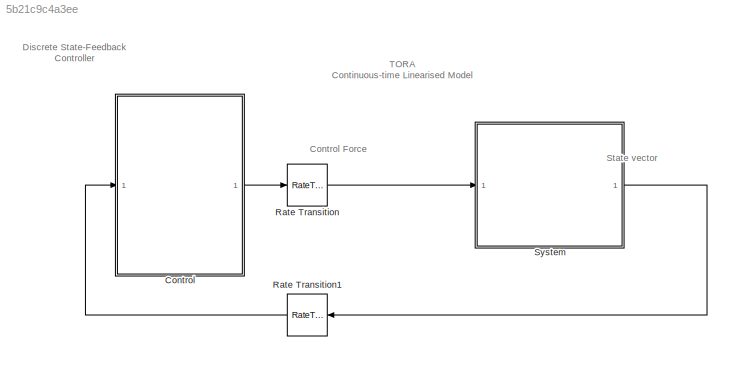
MODEL slx_5b21c9c4a3ee
KIND model
CONFIG AbsTol = 1e-6
CONFIG EnableMultiTasking = on
CONFIG FixedStep = h
CONFIG MaxStep = auto
CONFIG MinStep = auto
CONFIG RelTol = 1e-6
CONFIG SampleTimeConstraint = Unconstrained
CONFIG Solver = ode4
CONFIG SolverName = ode4
CONFIG StartTime = 0.0
CONFIG StopTime = stoptime
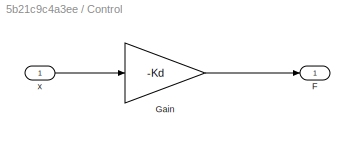
BLOCK [SubSystem] Control
  Ports = [1, 1]
  RequestExecContextInheritance = off
BLOCK [Outport] Control/F
  IconDisplay = Port number
  VectorParamsAs1DForOutWhenUnconnected = off
BLOCK [Gain] Control/Gain
  Gain = -Kd
  Multiplication = Matrix(K*u)
  OutDataTypeStr = Inherit: Inherit via internal rule
  ParamDataTypeStr = Inherit: Inherit via internal rule
  SaturateOnIntegerOverflow = off
BLOCK [Inport] Control/x
  IconDisplay = Port number
BLOCK [RateTransition] Rate Transition
  InitialCondition = -Kd*x0_tilde
BLOCK [RateTransition] Rate Transition1
  InitialCondition = x0_tilde
  OutPortSampleTime = Ts
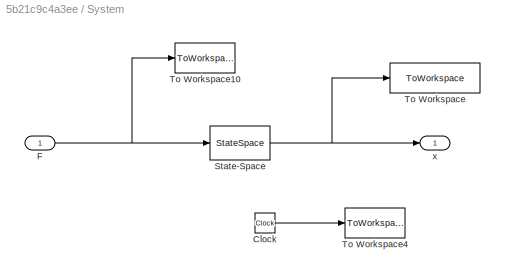
BLOCK [SubSystem] System
  Ports = [1, 1]
  RequestExecContextInheritance = off
BLOCK [Clock] System/Clock
BLOCK [Inport] System/F
  IconDisplay = Port number
BLOCK [StateSpace] System/State-Space
  A = A
  B = B
  C = C
  D = D
  InitialCondition = x0 - x_bar
  Ports = [1, 1]
BLOCK [ToWorkspace] System/To Workspace
  FixptAsFi = on
  MaxDataPoints = inf
  Ports = [1]
  SampleTime = -1
  VariableName = x
BLOCK [ToWorkspace] System/To Workspace10
  MaxDataPoints = inf
  Ports = [1]
  SampleTime = -1
  VariableName = F
BLOCK [ToWorkspace] System/To Workspace4
  MaxDataPoints = inf
  Ports = [1]
  SampleTime = -1
  VariableName = t
BLOCK [Outport] System/x
  IconDisplay = Port number
  VectorParamsAs1DForOutWhenUnconnected = off
ANNOTATION (root): TORA Continuous-time Linearised Model
ANNOTATION (root): Discrete State-Feedback Controller
ANNOTATION (root): Control Force
ANNOTATION (root): State vector
LINE Control/Gain:1 -> Control/F:1
LINE Control/x:1 -> Control/Gain:1
LINE Control:1 -> Rate Transition:1
LINE Rate Transition1:1 -> Control:1
LINE Rate Transition:1 -> System:1
LINE System/Clock:1 -> System/To Workspace4:1
NET System/F:1 -> System/State-Space:1, System/To Workspace10:1
NET System/State-Space:1 -> System/To Workspace:1, System/x:1
LINE System:1 -> Rate Transition1:1
note: NET lines group one-source signal fan-out (src -> all destinations, sorted); 1:1 wires keep LINE
